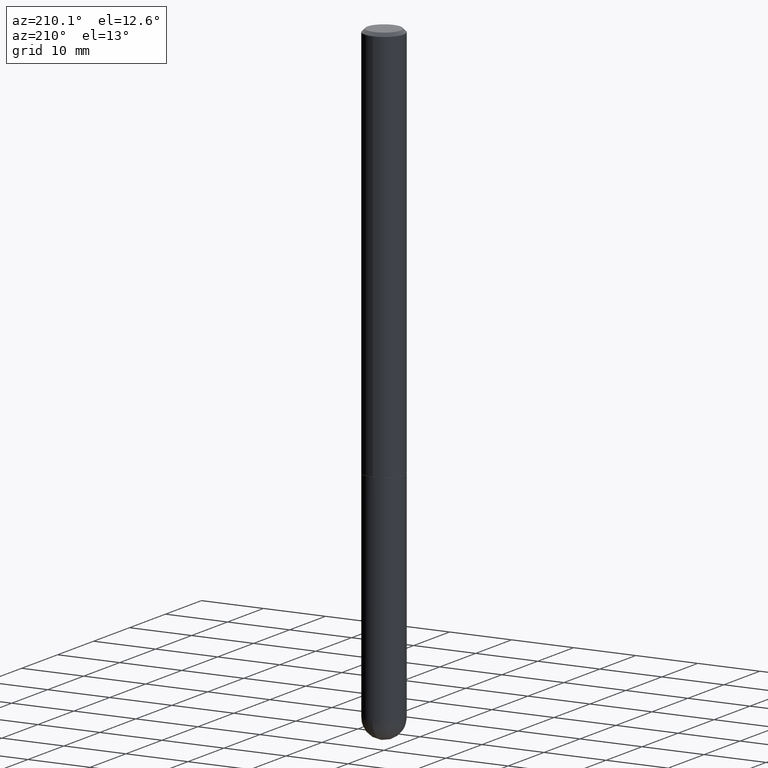
[diagram: clean part render]
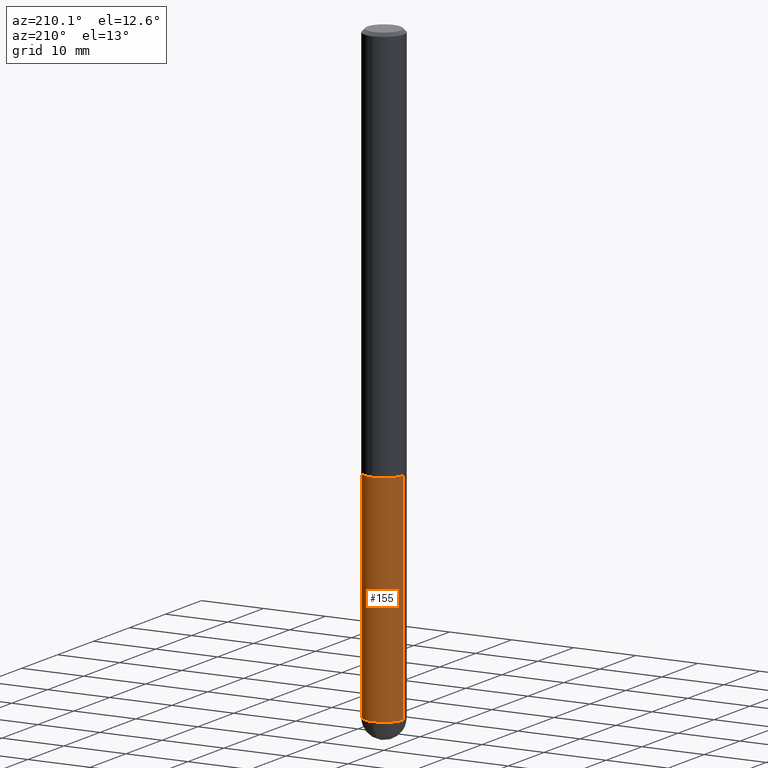
[diagram: same view with one face highlighted and labeled with its STEP entity id]
A machine part, auxiliary view. The second image highlights one B-rep face of the part: STEP entity #155.
In plain terms, the highlighted cylindrical surface (edge-blend (fillet) strip) has radius 3.175 mm, axis along (-0, 0, 1).
Its self-contained STEP definition (entity closure, byte-faithful):
#1 = CARTESIAN_POINT ( 'NONE',  ( 0.1250000000000000000, -9.601573681818648281E-15, -2.500000000000000000 ) ) ;
#6 = CARTESIAN_POINT ( 'NONE',  ( 6.113672015462842613E-29, -8.728703347107864943E-15, -2.500000000000000000 ) ) ;
#13 = DIRECTION ( 'NONE',  ( -2.445468806185136877E-29, 3.491481338843145188E-15, 1.000000000000000000 ) ) ;
#20 = CARTESIAN_POINT ( 'NONE',  ( -0.1250000000000000000, -1.024091834786240099E-14, -2.500000000000000000 ) ) ;
#23 = ORIENTED_EDGE ( 'NONE', *, *, #24, .F. ) ;
#24 = EDGE_CURVE ( 'NONE', #402, #109, #137, .T. ) ;
#43 = VERTEX_POINT ( 'NONE', #159 ) ;
#51 = CARTESIAN_POINT ( 'NONE',  ( 0.1250000000000000000, -1.200196710227331272E-14, -3.875000000000000000 ) ) ;
#56 = DIRECTION ( 'NONE',  ( 1.000000000000000000, -6.982962677686266711E-15, 4.876176775795935793E-29 ) ) ;
#66 = VECTOR ( 'NONE', #237, 39.37007874015748143 ) ;
#72 = EDGE_LOOP ( 'NONE', ( #391, #303, #23, #372, #178 ) ) ;
#78 = CYLINDRICAL_SURFACE ( 'NONE', #190, 0.1250000000000000000 ) ;
#81 = FACE_OUTER_BOUND ( 'NONE', #72, .T. ) ;
#91 = EDGE_CURVE ( 'NONE', #211, #402, #292, .T. ) ;
#99 = DIRECTION ( 'NONE',  ( 1.000000000000000000, -6.982962677686270655E-15, 0.000000000000000000 ) ) ;
#103 = DIRECTION ( 'NONE',  ( -2.445468806185136597E-29, 3.491481338843145583E-15, 1.000000000000000000 ) ) ;
#109 = VERTEX_POINT ( 'NONE', #20 ) ;
#111 = CARTESIAN_POINT ( 'NONE',  ( 9.476191623967404313E-29, -1.352949018801718908E-14, -3.875000000000000000 ) ) ;
#128 = AXIS2_PLACEMENT_3D ( 'NONE', #6, #103, #99 ) ;
#130 = EDGE_CURVE ( 'NONE', #166, #109, #339, .T. ) ;
#137 = CIRCLE ( 'NONE', #128, 0.1250000000000000000 ) ;
#139 = EDGE_CURVE ( 'NONE', #211, #43, #253, .T. ) ;
#146 = CARTESIAN_POINT ( 'NONE',  ( -0.1250000000000000000, -1.024091834786240415E-14, -3.875000000000000000 ) ) ;
#150 = DIRECTION ( 'NONE',  ( 1.000000000000000000, -6.982962677686262766E-15, 0.000000000000000000 ) ) ;
#155 = ADVANCED_FACE ( 'NONE', ( #81 ), #78, .T. ) ;
#159 = CARTESIAN_POINT ( 'NONE',  ( 8.728703347108770161E-16, 0.1249999999999863443, -3.875000000000000444 ) ) ;
#163 = AXIS2_PLACEMENT_3D ( 'NONE', #287, #185, #150 ) ;
#166 = VERTEX_POINT ( 'NONE', #146 ) ;
#178 = ORIENTED_EDGE ( 'NONE', *, *, #139, .T. ) ;
#185 = DIRECTION ( 'NONE',  ( -2.445468806185136597E-29, 3.491481338843145583E-15, 1.000000000000000000 ) ) ;
#190 = AXIS2_PLACEMENT_3D ( 'NONE', #273, #315, #56 ) ;
#202 = CARTESIAN_POINT ( 'NONE',  ( 0.1250000000000000000, -8.728703347107833388E-16, 6.095220969744919741E-30 ) ) ;
#211 = VERTEX_POINT ( 'NONE', #51 ) ;
#237 = DIRECTION ( 'NONE',  ( -2.445468806185136877E-29, 3.491481338843145188E-15, 1.000000000000000000 ) ) ;
#239 = CARTESIAN_POINT ( 'NONE',  ( -0.1250000000000000000, 8.881784197001252323E-16, -6.148668862818632227E-30 ) ) ;
#242 = DIRECTION ( 'NONE',  ( -2.445468806185136597E-29, 3.491481338843145583E-15, 1.000000000000000000 ) ) ;
#245 = CIRCLE ( 'NONE', #163, 0.1250000000000000000 ) ;
#253 = CIRCLE ( 'NONE', #370, 0.1250000000000000000 ) ;
#273 = CARTESIAN_POINT ( 'NONE',  ( 0.000000000000000000, 0.000000000000000000, 0.000000000000000000 ) ) ;
#277 = VECTOR ( 'NONE', #13, 39.37007874015748143 ) ;
#287 = CARTESIAN_POINT ( 'NONE',  ( 9.476191623967404313E-29, -1.352949018801718908E-14, -3.875000000000000000 ) ) ;
#292 = LINE ( 'NONE', #202, #277 ) ;
#303 = ORIENTED_EDGE ( 'NONE', *, *, #130, .T. ) ;
#315 = DIRECTION ( 'NONE',  ( -2.445468806185136597E-29, 3.491481338843145583E-15, 1.000000000000000000 ) ) ;
#339 = LINE ( 'NONE', #239, #66 ) ;
#370 = AXIS2_PLACEMENT_3D ( 'NONE', #111, #242, #401 ) ;
#372 = ORIENTED_EDGE ( 'NONE', *, *, #91, .F. ) ;
#384 = EDGE_CURVE ( 'NONE', #43, #166, #245, .T. ) ;
#391 = ORIENTED_EDGE ( 'NONE', *, *, #384, .T. ) ;
#401 = DIRECTION ( 'NONE',  ( 1.000000000000000000, -6.982962677686262766E-15, 0.000000000000000000 ) ) ;
#402 = VERTEX_POINT ( 'NONE', #1 ) ;